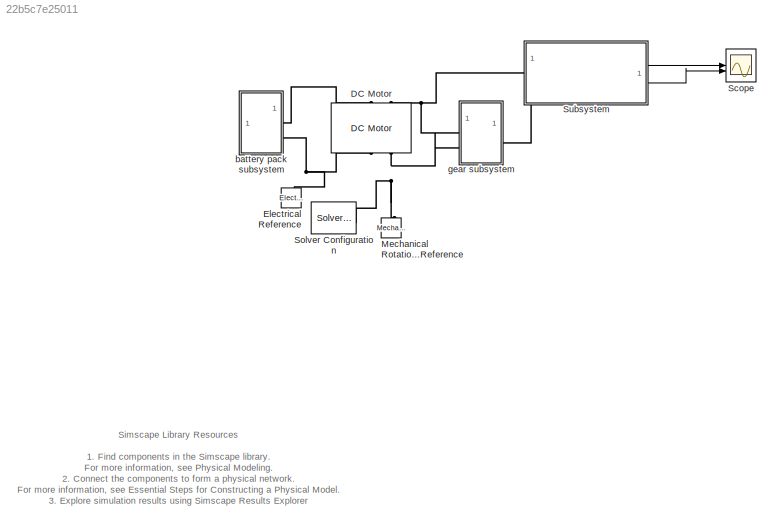
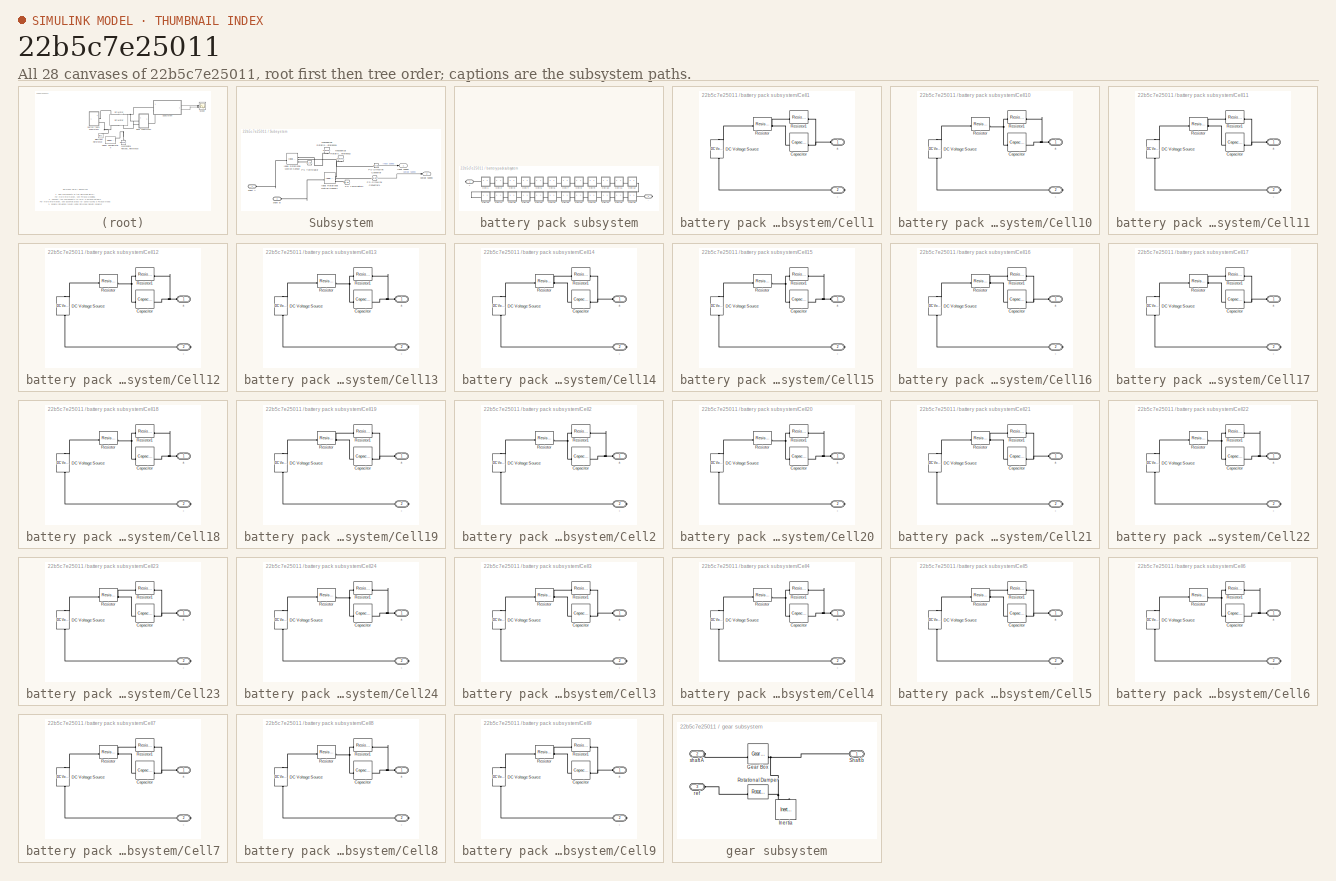
[diagram: thumbnail index - all 28 canvases of the model, root first then tree order]
MODEL slx_22b5c7e25011
KIND model
CONFIG AbsTol = 1e-3
CONFIG EnableMultiTasking = off
CONFIG FixedStep = auto
CONFIG MaxStep = auto
CONFIG MinStep = auto
CONFIG RelTol = 1e-3
CONFIG SampleTimeConstraint = Unconstrained
CONFIG SolverName = ode23t
CONFIG StartTime = 0.0
CONFIG StopTime = 10.0
BLOCK [Reference] DC Motor  REF=ee_lib/Electromechanical/Brushed Motors/DC Motor
  NameLocation = right
  SourceBlock = ee_lib/Electromechanical/Brushed Motors/DC Motor
  SourceType = DC Motor
BLOCK [Reference] Electrical Reference  REF=fl_lib/Electrical/Electrical Elements/Electrical Reference
  NameLocation = right
  SourceBlock = fl_lib/Electrical/Electrical Elements/Electrical Reference
  SourceType = Electrical Reference
BLOCK [Reference] Mechanical Rotational Reference  REF=fl_lib/Mechanical/Rotational Elements/Mechanical
Rotational Reference
  NameLocation = right
  SourceBlock = fl_lib/Mechanical/Rotational Elements/Mechanical\nRotational Reference
  SourceType = Mechanical\nRotational Reference
BLOCK [Scope] Scope
  Floating = off
  NumInputPorts = 2
  ScopeSpecificationString = Simulink.scopes.TimeScopeBlockCfg('CurrentConfiguration', extmgr.ConfigurationSet(extmgr.Configuration('Core','General UI',true),extmgr.Configuration('Core','Source UI',true),extmgr.Configuration('Sources','WiredSimulink',true),extmgr.Configuration('Visuals','Time Domain',true,'SerializedDisplays',{struct('MinYLimReal','24.30544','MaxYLimReal','59.02749','YLabelReal','','MinYLimMag','24.30544','Ma...<+1421ch>
BLOCK [Reference] Solver Configuration  REF=nesl_utility/Solver
Configuration
  SourceBlock = nesl_utility/Solver\nConfiguration
  SourceType = Solver\nConfiguration
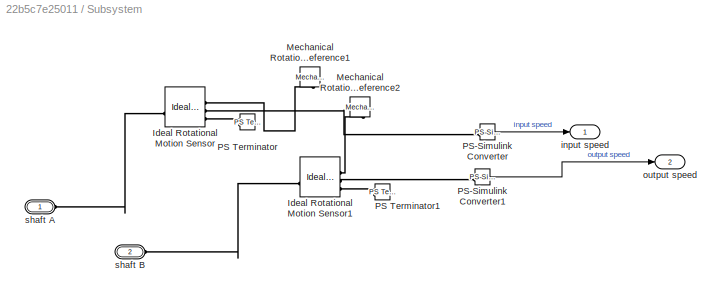
BLOCK [SubSystem] Subsystem
BLOCK [Reference] Subsystem/Ideal Rotational Motion Sensor  REF=fl_lib/Mechanical/Mechanical Sensors/Ideal Rotational
Motion Sensor
  SourceBlock = fl_lib/Mechanical/Mechanical Sensors/Ideal Rotational\nMotion Sensor
  SourceType = Ideal Rotational\nMotion Sensor
BLOCK [Reference] Subsystem/Ideal Rotational Motion Sensor1  REF=fl_lib/Mechanical/Mechanical Sensors/Ideal Rotational
Motion Sensor
  SourceBlock = fl_lib/Mechanical/Mechanical Sensors/Ideal Rotational\nMotion Sensor
  SourceType = Ideal Rotational\nMotion Sensor
BLOCK [Reference] Subsystem/Mechanical Rotational Reference1  REF=fl_lib/Mechanical/Rotational Elements/Mechanical
Rotational Reference
  NameLocation = left
  SourceBlock = fl_lib/Mechanical/Rotational Elements/Mechanical\nRotational Reference
  SourceType = Mechanical\nRotational Reference
BLOCK [Reference] Subsystem/Mechanical Rotational Reference2  REF=fl_lib/Mechanical/Rotational Elements/Mechanical
Rotational Reference
  NameLocation = left
  SourceBlock = fl_lib/Mechanical/Rotational Elements/Mechanical\nRotational Reference
  SourceType = Mechanical\nRotational Reference
BLOCK [Reference] Subsystem/PS Terminator  REF=fl_lib/Physical Signals/Sinks/PS Terminator
  SourceBlock = fl_lib/Physical Signals/Sinks/PS Terminator
  SourceType = PS Terminator
BLOCK [Reference] Subsystem/PS Terminator1  REF=fl_lib/Physical Signals/Sinks/PS Terminator
  SourceBlock = fl_lib/Physical Signals/Sinks/PS Terminator
  SourceType = PS Terminator
BLOCK [Reference] Subsystem/PS-Simulink Converter  REF=nesl_utility/PS-Simulink
Converter
  SourceBlock = nesl_utility/PS-Simulink\nConverter
  SourceType = PS-Simulink\nConverter
BLOCK [Reference] Subsystem/PS-Simulink Converter1  REF=nesl_utility/PS-Simulink
Converter
  SourceBlock = nesl_utility/PS-Simulink\nConverter
  SourceType = PS-Simulink\nConverter
BLOCK [Outport] Subsystem/input speed
BLOCK [Outport] Subsystem/output speed
  Port = 2
BLOCK [PMIOPort] Subsystem/shaft A
  Side = Left
BLOCK [PMIOPort] Subsystem/shaft B
  Port = 2
  Side = Left
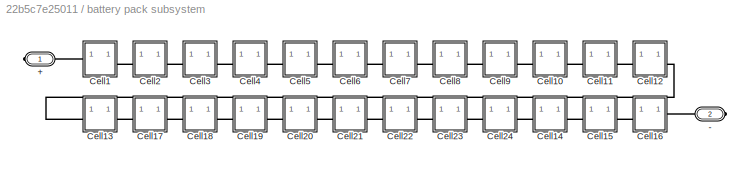
BLOCK [SubSystem] battery pack subsystem
BLOCK [PMIOPort] battery pack subsystem/+
  Side = Right
BLOCK [PMIOPort] battery pack subsystem/-
  Port = 2
  Side = Right
BLOCK [SubSystem] battery pack subsystem/Cell1
BLOCK [PMIOPort] battery pack subsystem/Cell1/+
  Side = Left
BLOCK [PMIOPort] battery pack subsystem/Cell1/-
  Port = 2
  Side = Right
BLOCK [Reference] battery pack subsystem/Cell1/Capacitor  REF=fl_lib/Electrical/Electrical Elements/Capacitor
  SourceBlock = fl_lib/Electrical/Electrical Elements/Capacitor
  SourceType = Capacitor
BLOCK [Reference] battery pack subsystem/Cell1/DC Voltage Source  REF=fl_lib/Electrical/Electrical Sources/DC Voltage Source
  NameLocation = right
  SourceBlock = fl_lib/Electrical/Electrical Sources/DC Voltage Source
  SourceType = DC Voltage Source
BLOCK [Reference] battery pack subsystem/Cell1/Resistor  REF=fl_lib/Electrical/Electrical Elements/Resistor
  AttributesFormatString = %<R> [%<R_unit>]
  SourceBlock = fl_lib/Electrical/Electrical Elements/Resistor
  SourceType = Resistor
BLOCK [Reference] battery pack subsystem/Cell1/Resistor1  REF=fl_lib/Electrical/Electrical Elements/Resistor
  AttributesFormatString = %<R> [%<R_unit>]
  SourceBlock = fl_lib/Electrical/Electrical Elements/Resistor
  SourceType = Resistor
BLOCK [SubSystem] battery pack subsystem/Cell10
BLOCK [PMIOPort] battery pack subsystem/Cell10/+
  Side = Left
BLOCK [PMIOPort] battery pack subsystem/Cell10/-
  Port = 2
  Side = Right
BLOCK [Reference] battery pack subsystem/Cell10/Capacitor  REF=fl_lib/Electrical/Electrical Elements/Capacitor
  SourceBlock = fl_lib/Electrical/Electrical Elements/Capacitor
  SourceType = Capacitor
BLOCK [Reference] battery pack subsystem/Cell10/DC Voltage Source  REF=fl_lib/Electrical/Electrical Sources/DC Voltage Source
  NameLocation = right
  SourceBlock = fl_lib/Electrical/Electrical Sources/DC Voltage Source
  SourceType = DC Voltage Source
BLOCK [Reference] battery pack subsystem/Cell10/Resistor  REF=fl_lib/Electrical/Electrical Elements/Resistor
  AttributesFormatString = %<R> [%<R_unit>]
  SourceBlock = fl_lib/Electrical/Electrical Elements/Resistor
  SourceType = Resistor
BLOCK [Reference] battery pack subsystem/Cell10/Resistor1  REF=fl_lib/Electrical/Electrical Elements/Resistor
  AttributesFormatString = %<R> [%<R_unit>]
  SourceBlock = fl_lib/Electrical/Electrical Elements/Resistor
  SourceType = Resistor
BLOCK [SubSystem] battery pack subsystem/Cell11
BLOCK [PMIOPort] battery pack subsystem/Cell11/+
  Side = Left
BLOCK [PMIOPort] battery pack subsystem/Cell11/-
  Port = 2
  Side = Right
BLOCK [Reference] battery pack subsystem/Cell11/Capacitor  REF=fl_lib/Electrical/Electrical Elements/Capacitor
  SourceBlock = fl_lib/Electrical/Electrical Elements/Capacitor
  SourceType = Capacitor
BLOCK [Reference] battery pack subsystem/Cell11/DC Voltage Source  REF=fl_lib/Electrical/Electrical Sources/DC Voltage Source
  NameLocation = right
  SourceBlock = fl_lib/Electrical/Electrical Sources/DC Voltage Source
  SourceType = DC Voltage Source
BLOCK [Reference] battery pack subsystem/Cell11/Resistor  REF=fl_lib/Electrical/Electrical Elements/Resistor
  AttributesFormatString = %<R> [%<R_unit>]
  SourceBlock = fl_lib/Electrical/Electrical Elements/Resistor
  SourceType = Resistor
BLOCK [Reference] battery pack subsystem/Cell11/Resistor1  REF=fl_lib/Electrical/Electrical Elements/Resistor
  AttributesFormatString = %<R> [%<R_unit>]
  SourceBlock = fl_lib/Electrical/Electrical Elements/Resistor
  SourceType = Resistor
BLOCK [SubSystem] battery pack subsystem/Cell12
BLOCK [PMIOPort] battery pack subsystem/Cell12/+
  Side = Left
BLOCK [PMIOPort] battery pack subsystem/Cell12/-
  Port = 2
  Side = Right
BLOCK [Reference] battery pack subsystem/Cell12/Capacitor  REF=fl_lib/Electrical/Electrical Elements/Capacitor
  SourceBlock = fl_lib/Electrical/Electrical Elements/Capacitor
  SourceType = Capacitor
BLOCK [Reference] battery pack subsystem/Cell12/DC Voltage Source  REF=fl_lib/Electrical/Electrical Sources/DC Voltage Source
  NameLocation = right
  SourceBlock = fl_lib/Electrical/Electrical Sources/DC Voltage Source
  SourceType = DC Voltage Source
BLOCK [Reference] battery pack subsystem/Cell12/Resistor  REF=fl_lib/Electrical/Electrical Elements/Resistor
  AttributesFormatString = %<R> [%<R_unit>]
  SourceBlock = fl_lib/Electrical/Electrical Elements/Resistor
  SourceType = Resistor
BLOCK [Reference] battery pack subsystem/Cell12/Resistor1  REF=fl_lib/Electrical/Electrical Elements/Resistor
  AttributesFormatString = %<R> [%<R_unit>]
  SourceBlock = fl_lib/Electrical/Electrical Elements/Resistor
  SourceType = Resistor
BLOCK [SubSystem] battery pack subsystem/Cell13
BLOCK [PMIOPort] battery pack subsystem/Cell13/+
  Side = Left
BLOCK [PMIOPort] battery pack subsystem/Cell13/-
  Port = 2
  Side = Right
BLOCK [Reference] battery pack subsystem/Cell13/Capacitor  REF=fl_lib/Electrical/Electrical Elements/Capacitor
  SourceBlock = fl_lib/Electrical/Electrical Elements/Capacitor
  SourceType = Capacitor
BLOCK [Reference] battery pack subsystem/Cell13/DC Voltage Source  REF=fl_lib/Electrical/Electrical Sources/DC Voltage Source
  NameLocation = right
  SourceBlock = fl_lib/Electrical/Electrical Sources/DC Voltage Source
  SourceType = DC Voltage Source
BLOCK [Reference] battery pack subsystem/Cell13/Resistor  REF=fl_lib/Electrical/Electrical Elements/Resistor
  AttributesFormatString = %<R> [%<R_unit>]
  SourceBlock = fl_lib/Electrical/Electrical Elements/Resistor
  SourceType = Resistor
BLOCK [Reference] battery pack subsystem/Cell13/Resistor1  REF=fl_lib/Electrical/Electrical Elements/Resistor
  AttributesFormatString = %<R> [%<R_unit>]
  SourceBlock = fl_lib/Electrical/Electrical Elements/Resistor
  SourceType = Resistor
BLOCK [SubSystem] battery pack subsystem/Cell14
BLOCK [PMIOPort] battery pack subsystem/Cell14/+
  Side = Left
BLOCK [PMIOPort] battery pack subsystem/Cell14/-
  Port = 2
  Side = Right
BLOCK [Reference] battery pack subsystem/Cell14/Capacitor  REF=fl_lib/Electrical/Electrical Elements/Capacitor
  SourceBlock = fl_lib/Electrical/Electrical Elements/Capacitor
  SourceType = Capacitor
BLOCK [Reference] battery pack subsystem/Cell14/DC Voltage Source  REF=fl_lib/Electrical/Electrical Sources/DC Voltage Source
  NameLocation = right
  SourceBlock = fl_lib/Electrical/Electrical Sources/DC Voltage Source
  SourceType = DC Voltage Source
BLOCK [Reference] battery pack subsystem/Cell14/Resistor  REF=fl_lib/Electrical/Electrical Elements/Resistor
  AttributesFormatString = %<R> [%<R_unit>]
  SourceBlock = fl_lib/Electrical/Electrical Elements/Resistor
  SourceType = Resistor
BLOCK [Reference] battery pack subsystem/Cell14/Resistor1  REF=fl_lib/Electrical/Electrical Elements/Resistor
  AttributesFormatString = %<R> [%<R_unit>]
  SourceBlock = fl_lib/Electrical/Electrical Elements/Resistor
  SourceType = Resistor
BLOCK [SubSystem] battery pack subsystem/Cell15
BLOCK [PMIOPort] battery pack subsystem/Cell15/+
  Side = Left
BLOCK [PMIOPort] battery pack subsystem/Cell15/-
  Port = 2
  Side = Right
BLOCK [Reference] battery pack subsystem/Cell15/Capacitor  REF=fl_lib/Electrical/Electrical Elements/Capacitor
  SourceBlock = fl_lib/Electrical/Electrical Elements/Capacitor
  SourceType = Capacitor
BLOCK [Reference] battery pack subsystem/Cell15/DC Voltage Source  REF=fl_lib/Electrical/Electrical Sources/DC Voltage Source
  NameLocation = right
  SourceBlock = fl_lib/Electrical/Electrical Sources/DC Voltage Source
  SourceType = DC Voltage Source
BLOCK [Reference] battery pack subsystem/Cell15/Resistor  REF=fl_lib/Electrical/Electrical Elements/Resistor
  AttributesFormatString = %<R> [%<R_unit>]
  SourceBlock = fl_lib/Electrical/Electrical Elements/Resistor
  SourceType = Resistor
BLOCK [Reference] battery pack subsystem/Cell15/Resistor1  REF=fl_lib/Electrical/Electrical Elements/Resistor
  AttributesFormatString = %<R> [%<R_unit>]
  SourceBlock = fl_lib/Electrical/Electrical Elements/Resistor
  SourceType = Resistor
BLOCK [SubSystem] battery pack subsystem/Cell16
BLOCK [PMIOPort] battery pack subsystem/Cell16/+
  Side = Left
BLOCK [PMIOPort] battery pack subsystem/Cell16/-
  Port = 2
  Side = Right
BLOCK [Reference] battery pack subsystem/Cell16/Capacitor  REF=fl_lib/Electrical/Electrical Elements/Capacitor
  SourceBlock = fl_lib/Electrical/Electrical Elements/Capacitor
  SourceType = Capacitor
BLOCK [Reference] battery pack subsystem/Cell16/DC Voltage Source  REF=fl_lib/Electrical/Electrical Sources/DC Voltage Source
  NameLocation = right
  SourceBlock = fl_lib/Electrical/Electrical Sources/DC Voltage Source
  SourceType = DC Voltage Source
BLOCK [Reference] battery pack subsystem/Cell16/Resistor  REF=fl_lib/Electrical/Electrical Elements/Resistor
  AttributesFormatString = %<R> [%<R_unit>]
  SourceBlock = fl_lib/Electrical/Electrical Elements/Resistor
  SourceType = Resistor
BLOCK [Reference] battery pack subsystem/Cell16/Resistor1  REF=fl_lib/Electrical/Electrical Elements/Resistor
  AttributesFormatString = %<R> [%<R_unit>]
  SourceBlock = fl_lib/Electrical/Electrical Elements/Resistor
  SourceType = Resistor
BLOCK [SubSystem] battery pack subsystem/Cell17
BLOCK [PMIOPort] battery pack subsystem/Cell17/+
  Side = Left
BLOCK [PMIOPort] battery pack subsystem/Cell17/-
  Port = 2
  Side = Right
BLOCK [Reference] battery pack subsystem/Cell17/Capacitor  REF=fl_lib/Electrical/Electrical Elements/Capacitor
  SourceBlock = fl_lib/Electrical/Electrical Elements/Capacitor
  SourceType = Capacitor
BLOCK [Reference] battery pack subsystem/Cell17/DC Voltage Source  REF=fl_lib/Electrical/Electrical Sources/DC Voltage Source
  NameLocation = right
  SourceBlock = fl_lib/Electrical/Electrical Sources/DC Voltage Source
  SourceType = DC Voltage Source
BLOCK [Reference] battery pack subsystem/Cell17/Resistor  REF=fl_lib/Electrical/Electrical Elements/Resistor
  AttributesFormatString = %<R> [%<R_unit>]
  SourceBlock = fl_lib/Electrical/Electrical Elements/Resistor
  SourceType = Resistor
BLOCK [Reference] battery pack subsystem/Cell17/Resistor1  REF=fl_lib/Electrical/Electrical Elements/Resistor
  AttributesFormatString = %<R> [%<R_unit>]
  SourceBlock = fl_lib/Electrical/Electrical Elements/Resistor
  SourceType = Resistor
BLOCK [SubSystem] battery pack subsystem/Cell18
BLOCK [PMIOPort] battery pack subsystem/Cell18/+
  Side = Left
BLOCK [PMIOPort] battery pack subsystem/Cell18/-
  Port = 2
  Side = Right
BLOCK [Reference] battery pack subsystem/Cell18/Capacitor  REF=fl_lib/Electrical/Electrical Elements/Capacitor
  SourceBlock = fl_lib/Electrical/Electrical Elements/Capacitor
  SourceType = Capacitor
BLOCK [Reference] battery pack subsystem/Cell18/DC Voltage Source  REF=fl_lib/Electrical/Electrical Sources/DC Voltage Source
  NameLocation = right
  SourceBlock = fl_lib/Electrical/Electrical Sources/DC Voltage Source
  SourceType = DC Voltage Source
BLOCK [Reference] battery pack subsystem/Cell18/Resistor  REF=fl_lib/Electrical/Electrical Elements/Resistor
  AttributesFormatString = %<R> [%<R_unit>]
  SourceBlock = fl_lib/Electrical/Electrical Elements/Resistor
  SourceType = Resistor
BLOCK [Reference] battery pack subsystem/Cell18/Resistor1  REF=fl_lib/Electrical/Electrical Elements/Resistor
  AttributesFormatString = %<R> [%<R_unit>]
  SourceBlock = fl_lib/Electrical/Electrical Elements/Resistor
  SourceType = Resistor
BLOCK [SubSystem] battery pack subsystem/Cell19
BLOCK [PMIOPort] battery pack subsystem/Cell19/+
  Side = Left
BLOCK [PMIOPort] battery pack subsystem/Cell19/-
  Port = 2
  Side = Right
BLOCK [Reference] battery pack subsystem/Cell19/Capacitor  REF=fl_lib/Electrical/Electrical Elements/Capacitor
  SourceBlock = fl_lib/Electrical/Electrical Elements/Capacitor
  SourceType = Capacitor
BLOCK [Reference] battery pack subsystem/Cell19/DC Voltage Source  REF=fl_lib/Electrical/Electrical Sources/DC Voltage Source
  NameLocation = right
  SourceBlock = fl_lib/Electrical/Electrical Sources/DC Voltage Source
  SourceType = DC Voltage Source
BLOCK [Reference] battery pack subsystem/Cell19/Resistor  REF=fl_lib/Electrical/Electrical Elements/Resistor
  AttributesFormatString = %<R> [%<R_unit>]
  SourceBlock = fl_lib/Electrical/Electrical Elements/Resistor
  SourceType = Resistor
BLOCK [Reference] battery pack subsystem/Cell19/Resistor1  REF=fl_lib/Electrical/Electrical Elements/Resistor
  AttributesFormatString = %<R> [%<R_unit>]
  SourceBlock = fl_lib/Electrical/Electrical Elements/Resistor
  SourceType = Resistor
BLOCK [SubSystem] battery pack subsystem/Cell2
BLOCK [PMIOPort] battery pack subsystem/Cell2/+
  Side = Left
BLOCK [PMIOPort] battery pack subsystem/Cell2/-
  Port = 2
  Side = Right
BLOCK [Reference] battery pack subsystem/Cell2/Capacitor  REF=fl_lib/Electrical/Electrical Elements/Capacitor
  SourceBlock = fl_lib/Electrical/Electrical Elements/Capacitor
  SourceType = Capacitor
BLOCK [Reference] battery pack subsystem/Cell2/DC Voltage Source  REF=fl_lib/Electrical/Electrical Sources/DC Voltage Source
  NameLocation = right
  SourceBlock = fl_lib/Electrical/Electrical Sources/DC Voltage Source
  SourceType = DC Voltage Source
BLOCK [Reference] battery pack subsystem/Cell2/Resistor  REF=fl_lib/Electrical/Electrical Elements/Resistor
  AttributesFormatString = %<R> [%<R_unit>]
  SourceBlock = fl_lib/Electrical/Electrical Elements/Resistor
  SourceType = Resistor
BLOCK [Reference] battery pack subsystem/Cell2/Resistor1  REF=fl_lib/Electrical/Electrical Elements/Resistor
  AttributesFormatString = %<R> [%<R_unit>]
  SourceBlock = fl_lib/Electrical/Electrical Elements/Resistor
  SourceType = Resistor
BLOCK [SubSystem] battery pack subsystem/Cell20
BLOCK [PMIOPort] battery pack subsystem/Cell20/+
  Side = Left
BLOCK [PMIOPort] battery pack subsystem/Cell20/-
  Port = 2
  Side = Right
BLOCK [Reference] battery pack subsystem/Cell20/Capacitor  REF=fl_lib/Electrical/Electrical Elements/Capacitor
  SourceBlock = fl_lib/Electrical/Electrical Elements/Capacitor
  SourceType = Capacitor
BLOCK [Reference] battery pack subsystem/Cell20/DC Voltage Source  REF=fl_lib/Electrical/Electrical Sources/DC Voltage Source
  NameLocation = right
  SourceBlock = fl_lib/Electrical/Electrical Sources/DC Voltage Source
  SourceType = DC Voltage Source
BLOCK [Reference] battery pack subsystem/Cell20/Resistor  REF=fl_lib/Electrical/Electrical Elements/Resistor
  AttributesFormatString = %<R> [%<R_unit>]
  SourceBlock = fl_lib/Electrical/Electrical Elements/Resistor
  SourceType = Resistor
BLOCK [Reference] battery pack subsystem/Cell20/Resistor1  REF=fl_lib/Electrical/Electrical Elements/Resistor
  AttributesFormatString = %<R> [%<R_unit>]
  SourceBlock = fl_lib/Electrical/Electrical Elements/Resistor
  SourceType = Resistor
BLOCK [SubSystem] battery pack subsystem/Cell21
BLOCK [PMIOPort] battery pack subsystem/Cell21/+
  Side = Left
BLOCK [PMIOPort] battery pack subsystem/Cell21/-
  Port = 2
  Side = Right
BLOCK [Reference] battery pack subsystem/Cell21/Capacitor  REF=fl_lib/Electrical/Electrical Elements/Capacitor
  SourceBlock = fl_lib/Electrical/Electrical Elements/Capacitor
  SourceType = Capacitor
BLOCK [Reference] battery pack subsystem/Cell21/DC Voltage Source  REF=fl_lib/Electrical/Electrical Sources/DC Voltage Source
  NameLocation = right
  SourceBlock = fl_lib/Electrical/Electrical Sources/DC Voltage Source
  SourceType = DC Voltage Source
BLOCK [Reference] battery pack subsystem/Cell21/Resistor  REF=fl_lib/Electrical/Electrical Elements/Resistor
  AttributesFormatString = %<R> [%<R_unit>]
  SourceBlock = fl_lib/Electrical/Electrical Elements/Resistor
  SourceType = Resistor
BLOCK [Reference] battery pack subsystem/Cell21/Resistor1  REF=fl_lib/Electrical/Electrical Elements/Resistor
  AttributesFormatString = %<R> [%<R_unit>]
  SourceBlock = fl_lib/Electrical/Electrical Elements/Resistor
  SourceType = Resistor
BLOCK [SubSystem] battery pack subsystem/Cell22
BLOCK [PMIOPort] battery pack subsystem/Cell22/+
  Side = Left
BLOCK [PMIOPort] battery pack subsystem/Cell22/-
  Port = 2
  Side = Right
BLOCK [Reference] battery pack subsystem/Cell22/Capacitor  REF=fl_lib/Electrical/Electrical Elements/Capacitor
  SourceBlock = fl_lib/Electrical/Electrical Elements/Capacitor
  SourceType = Capacitor
BLOCK [Reference] battery pack subsystem/Cell22/DC Voltage Source  REF=fl_lib/Electrical/Electrical Sources/DC Voltage Source
  NameLocation = right
  SourceBlock = fl_lib/Electrical/Electrical Sources/DC Voltage Source
  SourceType = DC Voltage Source
BLOCK [Reference] battery pack subsystem/Cell22/Resistor  REF=fl_lib/Electrical/Electrical Elements/Resistor
  AttributesFormatString = %<R> [%<R_unit>]
  SourceBlock = fl_lib/Electrical/Electrical Elements/Resistor
  SourceType = Resistor
BLOCK [Reference] battery pack subsystem/Cell22/Resistor1  REF=fl_lib/Electrical/Electrical Elements/Resistor
  AttributesFormatString = %<R> [%<R_unit>]
  SourceBlock = fl_lib/Electrical/Electrical Elements/Resistor
  SourceType = Resistor
BLOCK [SubSystem] battery pack subsystem/Cell23
BLOCK [PMIOPort] battery pack subsystem/Cell23/+
  Side = Left
BLOCK [PMIOPort] battery pack subsystem/Cell23/-
  Port = 2
  Side = Right
BLOCK [Reference] battery pack subsystem/Cell23/Capacitor  REF=fl_lib/Electrical/Electrical Elements/Capacitor
  SourceBlock = fl_lib/Electrical/Electrical Elements/Capacitor
  SourceType = Capacitor
BLOCK [Reference] battery pack subsystem/Cell23/DC Voltage Source  REF=fl_lib/Electrical/Electrical Sources/DC Voltage Source
  NameLocation = right
  SourceBlock = fl_lib/Electrical/Electrical Sources/DC Voltage Source
  SourceType = DC Voltage Source
BLOCK [Reference] battery pack subsystem/Cell23/Resistor  REF=fl_lib/Electrical/Electrical Elements/Resistor
  AttributesFormatString = %<R> [%<R_unit>]
  SourceBlock = fl_lib/Electrical/Electrical Elements/Resistor
  SourceType = Resistor
BLOCK [Reference] battery pack subsystem/Cell23/Resistor1  REF=fl_lib/Electrical/Electrical Elements/Resistor
  AttributesFormatString = %<R> [%<R_unit>]
  SourceBlock = fl_lib/Electrical/Electrical Elements/Resistor
  SourceType = Resistor
BLOCK [SubSystem] battery pack subsystem/Cell24
BLOCK [PMIOPort] battery pack subsystem/Cell24/+
  Side = Left
BLOCK [PMIOPort] battery pack subsystem/Cell24/-
  Port = 2
  Side = Right
BLOCK [Reference] battery pack subsystem/Cell24/Capacitor  REF=fl_lib/Electrical/Electrical Elements/Capacitor
  SourceBlock = fl_lib/Electrical/Electrical Elements/Capacitor
  SourceType = Capacitor
BLOCK [Reference] battery pack subsystem/Cell24/DC Voltage Source  REF=fl_lib/Electrical/Electrical Sources/DC Voltage Source
  NameLocation = right
  SourceBlock = fl_lib/Electrical/Electrical Sources/DC Voltage Source
  SourceType = DC Voltage Source
BLOCK [Reference] battery pack subsystem/Cell24/Resistor  REF=fl_lib/Electrical/Electrical Elements/Resistor
  AttributesFormatString = %<R> [%<R_unit>]
  SourceBlock = fl_lib/Electrical/Electrical Elements/Resistor
  SourceType = Resistor
BLOCK [Reference] battery pack subsystem/Cell24/Resistor1  REF=fl_lib/Electrical/Electrical Elements/Resistor
  AttributesFormatString = %<R> [%<R_unit>]
  SourceBlock = fl_lib/Electrical/Electrical Elements/Resistor
  SourceType = Resistor
BLOCK [SubSystem] battery pack subsystem/Cell3
BLOCK [PMIOPort] battery pack subsystem/Cell3/+
  Side = Left
BLOCK [PMIOPort] battery pack subsystem/Cell3/-
  Port = 2
  Side = Right
BLOCK [Reference] battery pack subsystem/Cell3/Capacitor  REF=fl_lib/Electrical/Electrical Elements/Capacitor
  SourceBlock = fl_lib/Electrical/Electrical Elements/Capacitor
  SourceType = Capacitor
BLOCK [Reference] battery pack subsystem/Cell3/DC Voltage Source  REF=fl_lib/Electrical/Electrical Sources/DC Voltage Source
  NameLocation = right
  SourceBlock = fl_lib/Electrical/Electrical Sources/DC Voltage Source
  SourceType = DC Voltage Source
BLOCK [Reference] battery pack subsystem/Cell3/Resistor  REF=fl_lib/Electrical/Electrical Elements/Resistor
  AttributesFormatString = %<R> [%<R_unit>]
  SourceBlock = fl_lib/Electrical/Electrical Elements/Resistor
  SourceType = Resistor
BLOCK [Reference] battery pack subsystem/Cell3/Resistor1  REF=fl_lib/Electrical/Electrical Elements/Resistor
  AttributesFormatString = %<R> [%<R_unit>]
  SourceBlock = fl_lib/Electrical/Electrical Elements/Resistor
  SourceType = Resistor
BLOCK [SubSystem] battery pack subsystem/Cell4
BLOCK [PMIOPort] battery pack subsystem/Cell4/+
  Side = Left
BLOCK [PMIOPort] battery pack subsystem/Cell4/-
  Port = 2
  Side = Right
BLOCK [Reference] battery pack subsystem/Cell4/Capacitor  REF=fl_lib/Electrical/Electrical Elements/Capacitor
  SourceBlock = fl_lib/Electrical/Electrical Elements/Capacitor
  SourceType = Capacitor
BLOCK [Reference] battery pack subsystem/Cell4/DC Voltage Source  REF=fl_lib/Electrical/Electrical Sources/DC Voltage Source
  NameLocation = right
  SourceBlock = fl_lib/Electrical/Electrical Sources/DC Voltage Source
  SourceType = DC Voltage Source
BLOCK [Reference] battery pack subsystem/Cell4/Resistor  REF=fl_lib/Electrical/Electrical Elements/Resistor
  AttributesFormatString = %<R> [%<R_unit>]
  SourceBlock = fl_lib/Electrical/Electrical Elements/Resistor
  SourceType = Resistor
BLOCK [Reference] battery pack subsystem/Cell4/Resistor1  REF=fl_lib/Electrical/Electrical Elements/Resistor
  AttributesFormatString = %<R> [%<R_unit>]
  SourceBlock = fl_lib/Electrical/Electrical Elements/Resistor
  SourceType = Resistor
BLOCK [SubSystem] battery pack subsystem/Cell5
BLOCK [PMIOPort] battery pack subsystem/Cell5/+
  Side = Left
BLOCK [PMIOPort] battery pack subsystem/Cell5/-
  Port = 2
  Side = Right
BLOCK [Reference] battery pack subsystem/Cell5/Capacitor  REF=fl_lib/Electrical/Electrical Elements/Capacitor
  SourceBlock = fl_lib/Electrical/Electrical Elements/Capacitor
  SourceType = Capacitor
BLOCK [Reference] battery pack subsystem/Cell5/DC Voltage Source  REF=fl_lib/Electrical/Electrical Sources/DC Voltage Source
  NameLocation = right
  SourceBlock = fl_lib/Electrical/Electrical Sources/DC Voltage Source
  SourceType = DC Voltage Source
BLOCK [Reference] battery pack subsystem/Cell5/Resistor  REF=fl_lib/Electrical/Electrical Elements/Resistor
  AttributesFormatString = %<R> [%<R_unit>]
  SourceBlock = fl_lib/Electrical/Electrical Elements/Resistor
  SourceType = Resistor
BLOCK [Reference] battery pack subsystem/Cell5/Resistor1  REF=fl_lib/Electrical/Electrical Elements/Resistor
  AttributesFormatString = %<R> [%<R_unit>]
  SourceBlock = fl_lib/Electrical/Electrical Elements/Resistor
  SourceType = Resistor
BLOCK [SubSystem] battery pack subsystem/Cell6
BLOCK [PMIOPort] battery pack subsystem/Cell6/+
  Side = Left
BLOCK [PMIOPort] battery pack subsystem/Cell6/-
  Port = 2
  Side = Right
BLOCK [Reference] battery pack subsystem/Cell6/Capacitor  REF=fl_lib/Electrical/Electrical Elements/Capacitor
  SourceBlock = fl_lib/Electrical/Electrical Elements/Capacitor
  SourceType = Capacitor
BLOCK [Reference] battery pack subsystem/Cell6/DC Voltage Source  REF=fl_lib/Electrical/Electrical Sources/DC Voltage Source
  NameLocation = right
  SourceBlock = fl_lib/Electrical/Electrical Sources/DC Voltage Source
  SourceType = DC Voltage Source
BLOCK [Reference] battery pack subsystem/Cell6/Resistor  REF=fl_lib/Electrical/Electrical Elements/Resistor
  AttributesFormatString = %<R> [%<R_unit>]
  SourceBlock = fl_lib/Electrical/Electrical Elements/Resistor
  SourceType = Resistor
BLOCK [Reference] battery pack subsystem/Cell6/Resistor1  REF=fl_lib/Electrical/Electrical Elements/Resistor
  AttributesFormatString = %<R> [%<R_unit>]
  SourceBlock = fl_lib/Electrical/Electrical Elements/Resistor
  SourceType = Resistor
BLOCK [SubSystem] battery pack subsystem/Cell7
BLOCK [PMIOPort] battery pack subsystem/Cell7/+
  Side = Left
BLOCK [PMIOPort] battery pack subsystem/Cell7/-
  Port = 2
  Side = Right
BLOCK [Reference] battery pack subsystem/Cell7/Capacitor  REF=fl_lib/Electrical/Electrical Elements/Capacitor
  SourceBlock = fl_lib/Electrical/Electrical Elements/Capacitor
  SourceType = Capacitor
BLOCK [Reference] battery pack subsystem/Cell7/DC Voltage Source  REF=fl_lib/Electrical/Electrical Sources/DC Voltage Source
  NameLocation = right
  SourceBlock = fl_lib/Electrical/Electrical Sources/DC Voltage Source
  SourceType = DC Voltage Source
BLOCK [Reference] battery pack subsystem/Cell7/Resistor  REF=fl_lib/Electrical/Electrical Elements/Resistor
  AttributesFormatString = %<R> [%<R_unit>]
  SourceBlock = fl_lib/Electrical/Electrical Elements/Resistor
  SourceType = Resistor
BLOCK [Reference] battery pack subsystem/Cell7/Resistor1  REF=fl_lib/Electrical/Electrical Elements/Resistor
  AttributesFormatString = %<R> [%<R_unit>]
  SourceBlock = fl_lib/Electrical/Electrical Elements/Resistor
  SourceType = Resistor
BLOCK [SubSystem] battery pack subsystem/Cell8
BLOCK [PMIOPort] battery pack subsystem/Cell8/+
  Side = Left
BLOCK [PMIOPort] battery pack subsystem/Cell8/-
  Port = 2
  Side = Right
BLOCK [Reference] battery pack subsystem/Cell8/Capacitor  REF=fl_lib/Electrical/Electrical Elements/Capacitor
  SourceBlock = fl_lib/Electrical/Electrical Elements/Capacitor
  SourceType = Capacitor
BLOCK [Reference] battery pack subsystem/Cell8/DC Voltage Source  REF=fl_lib/Electrical/Electrical Sources/DC Voltage Source
  NameLocation = right
  SourceBlock = fl_lib/Electrical/Electrical Sources/DC Voltage Source
  SourceType = DC Voltage Source
BLOCK [Reference] battery pack subsystem/Cell8/Resistor  REF=fl_lib/Electrical/Electrical Elements/Resistor
  AttributesFormatString = %<R> [%<R_unit>]
  SourceBlock = fl_lib/Electrical/Electrical Elements/Resistor
  SourceType = Resistor
BLOCK [Reference] battery pack subsystem/Cell8/Resistor1  REF=fl_lib/Electrical/Electrical Elements/Resistor
  AttributesFormatString = %<R> [%<R_unit>]
  SourceBlock = fl_lib/Electrical/Electrical Elements/Resistor
  SourceType = Resistor
BLOCK [SubSystem] battery pack subsystem/Cell9
BLOCK [PMIOPort] battery pack subsystem/Cell9/+
  Side = Left
BLOCK [PMIOPort] battery pack subsystem/Cell9/-
  Port = 2
  Side = Right
BLOCK [Reference] battery pack subsystem/Cell9/Capacitor  REF=fl_lib/Electrical/Electrical Elements/Capacitor
  SourceBlock = fl_lib/Electrical/Electrical Elements/Capacitor
  SourceType = Capacitor
BLOCK [Reference] battery pack subsystem/Cell9/DC Voltage Source  REF=fl_lib/Electrical/Electrical Sources/DC Voltage Source
  NameLocation = right
  SourceBlock = fl_lib/Electrical/Electrical Sources/DC Voltage Source
  SourceType = DC Voltage Source
BLOCK [Reference] battery pack subsystem/Cell9/Resistor  REF=fl_lib/Electrical/Electrical Elements/Resistor
  AttributesFormatString = %<R> [%<R_unit>]
  SourceBlock = fl_lib/Electrical/Electrical Elements/Resistor
  SourceType = Resistor
BLOCK [Reference] battery pack subsystem/Cell9/Resistor1  REF=fl_lib/Electrical/Electrical Elements/Resistor
  AttributesFormatString = %<R> [%<R_unit>]
  SourceBlock = fl_lib/Electrical/Electrical Elements/Resistor
  SourceType = Resistor
BLOCK [SubSystem] gear subsystem
BLOCK [Reference] gear subsystem/Gear Box  REF=fl_lib/Mechanical/Mechanisms/Gear Box
  SourceBlock = fl_lib/Mechanical/Mechanisms/Gear Box
  SourceType = Gear Box
BLOCK [Reference] gear subsystem/Inertia  REF=fl_lib/Mechanical/Rotational Elements/Inertia
  NameLocation = right
  SourceBlock = fl_lib/Mechanical/Rotational Elements/Inertia
  SourceType = Inertia
BLOCK [Reference] gear subsystem/Rotational Damper  REF=fl_lib/Mechanical/Rotational Elements/Rotational Damper
  SourceBlock = fl_lib/Mechanical/Rotational Elements/Rotational Damper
  SourceType = Rotational Damper
BLOCK [PMIOPort] gear subsystem/Shaft b
  Side = Right
BLOCK [PMIOPort] gear subsystem/ref
  Port = 3
  Side = Left
BLOCK [PMIOPort] gear subsystem/shaft A
  Port = 2
  Side = Left
ANNOTATION (root): 1. Find components in the Simscape library . For more information, see Physical Modeling . 2. Connect the components to form a physical network. For more information, see Essential Steps for Constructing a Physical Model . 3. Explore simulation results using Simscape Results Explorer
ANNOTATION (root): Simscape Library Resources
LINE Subsystem/PS-Simulink Converter1:1 -> Subsystem/output speed:1
LINE Subsystem/PS-Simulink Converter:1 -> Subsystem/input speed:1
LINE Subsystem:1 -> Scope:1
LINE Subsystem:2 -> Scope:2
PLINE DC Motor:LConn1 -- battery pack subsystem:RConn1
PNET net1: DC Motor:LConn2 -- Subsystem:LConn1 -- gear subsystem:LConn1
PNET net2: DC Motor:RConn1 -- Electrical Reference:LConn1 -- battery pack subsystem:RConn2
PNET net3: DC Motor:RConn2 -- Mechanical Rotational Reference:LConn1 -- Solver Configuration:RConn1 -- gear subsystem:LConn2
PLINE Subsystem/Ideal Rotational Motion Sensor1:LConn1 -- Subsystem/shaft B:RConn1
PLINE Subsystem/Ideal Rotational Motion Sensor1:RConn1 -- Subsystem/Mechanical Rotational Reference2:LConn1
PLINE Subsystem/Ideal Rotational Motion Sensor1:RConn2 -- Subsystem/PS-Simulink Converter1:LConn1
PLINE Subsystem/Ideal Rotational Motion Sensor1:RConn3 -- Subsystem/PS Terminator1:LConn1
PLINE Subsystem/Ideal Rotational Motion Sensor:LConn1 -- Subsystem/shaft A:RConn1
PLINE Subsystem/Ideal Rotational Motion Sensor:RConn1 -- Subsystem/Mechanical Rotational Reference1:LConn1
PLINE Subsystem/Ideal Rotational Motion Sensor:RConn2 -- Subsystem/PS-Simulink Converter:LConn1
PLINE Subsystem/Ideal Rotational Motion Sensor:RConn3 -- Subsystem/PS Terminator:LConn1
PLINE Subsystem:LConn2 -- gear subsystem:RConn1
PLINE battery pack subsystem/+:RConn1 -- battery pack subsystem/Cell1:LConn1
PLINE battery pack subsystem/-:RConn1 -- battery pack subsystem/Cell16:RConn1
PNET net4: battery pack subsystem/Cell1/+:RConn1 -- battery pack subsystem/Cell1/Capacitor:RConn1 -- battery pack subsystem/Cell1/Resistor1:RConn1
PLINE battery pack subsystem/Cell1/-:RConn1 -- battery pack subsystem/Cell1/DC Voltage Source:RConn1
PNET net5: battery pack subsystem/Cell1/Capacitor:LConn1 -- battery pack subsystem/Cell1/Resistor1:LConn1 -- battery pack subsystem/Cell1/Resistor:RConn1
PLINE battery pack subsystem/Cell1/DC Voltage Source:LConn1 -- battery pack subsystem/Cell1/Resistor:LConn1
PNET net6: battery pack subsystem/Cell10/+:RConn1 -- battery pack subsystem/Cell10/Capacitor:RConn1 -- battery pack subsystem/Cell10/Resistor1:RConn1
PLINE battery pack subsystem/Cell10/-:RConn1 -- battery pack subsystem/Cell10/DC Voltage Source:RConn1
PNET net7: battery pack subsystem/Cell10/Capacitor:LConn1 -- battery pack subsystem/Cell10/Resistor1:LConn1 -- battery pack subsystem/Cell10/Resistor:RConn1
PLINE battery pack subsystem/Cell10/DC Voltage Source:LConn1 -- battery pack subsystem/Cell10/Resistor:LConn1
PLINE battery pack subsystem/Cell10:LConn1 -- battery pack subsystem/Cell9:RConn1
PLINE battery pack subsystem/Cell10:RConn1 -- battery pack subsystem/Cell11:LConn1
PNET net8: battery pack subsystem/Cell11/+:RConn1 -- battery pack subsystem/Cell11/Capacitor:RConn1 -- battery pack subsystem/Cell11/Resistor1:RConn1
PLINE battery pack subsystem/Cell11/-:RConn1 -- battery pack subsystem/Cell11/DC Voltage Source:RConn1
PNET net9: battery pack subsystem/Cell11/Capacitor:LConn1 -- battery pack subsystem/Cell11/Resistor1:LConn1 -- battery pack subsystem/Cell11/Resistor:RConn1
PLINE battery pack subsystem/Cell11/DC Voltage Source:LConn1 -- battery pack subsystem/Cell11/Resistor:LConn1
PLINE battery pack subsystem/Cell11:RConn1 -- battery pack subsystem/Cell12:LConn1
PNET net10: battery pack subsystem/Cell12/+:RConn1 -- battery pack subsystem/Cell12/Capacitor:RConn1 -- battery pack subsystem/Cell12/Resistor1:RConn1
PLINE battery pack subsystem/Cell12/-:RConn1 -- battery pack subsystem/Cell12/DC Voltage Source:RConn1
PNET net11: battery pack subsystem/Cell12/Capacitor:LConn1 -- battery pack subsystem/Cell12/Resistor1:LConn1 -- battery pack subsystem/Cell12/Resistor:RConn1
PLINE battery pack subsystem/Cell12/DC Voltage Source:LConn1 -- battery pack subsystem/Cell12/Resistor:LConn1
PLINE battery pack subsystem/Cell12:RConn1 -- battery pack subsystem/Cell13:LConn1
PNET net12: battery pack subsystem/Cell13/+:RConn1 -- battery pack subsystem/Cell13/Capacitor:RConn1 -- battery pack subsystem/Cell13/Resistor1:RConn1
PLINE battery pack subsystem/Cell13/-:RConn1 -- battery pack subsystem/Cell13/DC Voltage Source:RConn1
PNET net13: battery pack subsystem/Cell13/Capacitor:LConn1 -- battery pack subsystem/Cell13/Resistor1:LConn1 -- battery pack subsystem/Cell13/Resistor:RConn1
PLINE battery pack subsystem/Cell13/DC Voltage Source:LConn1 -- battery pack subsystem/Cell13/Resistor:LConn1
PLINE battery pack subsystem/Cell13:RConn1 -- battery pack subsystem/Cell17:LConn1
PNET net14: battery pack subsystem/Cell14/+:RConn1 -- battery pack subsystem/Cell14/Capacitor:RConn1 -- battery pack subsystem/Cell14/Resistor1:RConn1
PLINE battery pack subsystem/Cell14/-:RConn1 -- battery pack subsystem/Cell14/DC Voltage Source:RConn1
PNET net15: battery pack subsystem/Cell14/Capacitor:LConn1 -- battery pack subsystem/Cell14/Resistor1:LConn1 -- battery pack subsystem/Cell14/Resistor:RConn1
PLINE battery pack subsystem/Cell14/DC Voltage Source:LConn1 -- battery pack subsystem/Cell14/Resistor:LConn1
PLINE battery pack subsystem/Cell14:LConn1 -- battery pack subsystem/Cell24:RConn1
PLINE battery pack subsystem/Cell14:RConn1 -- battery pack subsystem/Cell15:LConn1
PNET net16: battery pack subsystem/Cell15/+:RConn1 -- battery pack subsystem/Cell15/Capacitor:RConn1 -- battery pack subsystem/Cell15/Resistor1:RConn1
PLINE battery pack subsystem/Cell15/-:RConn1 -- battery pack subsystem/Cell15/DC Voltage Source:RConn1
PNET net17: battery pack subsystem/Cell15/Capacitor:LConn1 -- battery pack subsystem/Cell15/Resistor1:LConn1 -- battery pack subsystem/Cell15/Resistor:RConn1
PLINE battery pack subsystem/Cell15/DC Voltage Source:LConn1 -- battery pack subsystem/Cell15/Resistor:LConn1
PLINE battery pack subsystem/Cell15:RConn1 -- battery pack subsystem/Cell16:LConn1
PNET net18: battery pack subsystem/Cell16/+:RConn1 -- battery pack subsystem/Cell16/Capacitor:RConn1 -- battery pack subsystem/Cell16/Resistor1:RConn1
PLINE battery pack subsystem/Cell16/-:RConn1 -- battery pack subsystem/Cell16/DC Voltage Source:RConn1
PNET net19: battery pack subsystem/Cell16/Capacitor:LConn1 -- battery pack subsystem/Cell16/Resistor1:LConn1 -- battery pack subsystem/Cell16/Resistor:RConn1
PLINE battery pack subsystem/Cell16/DC Voltage Source:LConn1 -- battery pack subsystem/Cell16/Resistor:LConn1
PNET net20: battery pack subsystem/Cell17/+:RConn1 -- battery pack subsystem/Cell17/Capacitor:RConn1 -- battery pack subsystem/Cell17/Resistor1:RConn1
PLINE battery pack subsystem/Cell17/-:RConn1 -- battery pack subsystem/Cell17/DC Voltage Source:RConn1
PNET net21: battery pack subsystem/Cell17/Capacitor:LConn1 -- battery pack subsystem/Cell17/Resistor1:LConn1 -- battery pack subsystem/Cell17/Resistor:RConn1
PLINE battery pack subsystem/Cell17/DC Voltage Source:LConn1 -- battery pack subsystem/Cell17/Resistor:LConn1
PLINE battery pack subsystem/Cell17:RConn1 -- battery pack subsystem/Cell18:LConn1
PNET net22: battery pack subsystem/Cell18/+:RConn1 -- battery pack subsystem/Cell18/Capacitor:RConn1 -- battery pack subsystem/Cell18/Resistor1:RConn1
PLINE battery pack subsystem/Cell18/-:RConn1 -- battery pack subsystem/Cell18/DC Voltage Source:RConn1
PNET net23: battery pack subsystem/Cell18/Capacitor:LConn1 -- battery pack subsystem/Cell18/Resistor1:LConn1 -- battery pack subsystem/Cell18/Resistor:RConn1
PLINE battery pack subsystem/Cell18/DC Voltage Source:LConn1 -- battery pack subsystem/Cell18/Resistor:LConn1
PLINE battery pack subsystem/Cell18:RConn1 -- battery pack subsystem/Cell19:LConn1
PNET net24: battery pack subsystem/Cell19/+:RConn1 -- battery pack subsystem/Cell19/Capacitor:RConn1 -- battery pack subsystem/Cell19/Resistor1:RConn1
PLINE battery pack subsystem/Cell19/-:RConn1 -- battery pack subsystem/Cell19/DC Voltage Source:RConn1
PNET net25: battery pack subsystem/Cell19/Capacitor:LConn1 -- battery pack subsystem/Cell19/Resistor1:LConn1 -- battery pack subsystem/Cell19/Resistor:RConn1
PLINE battery pack subsystem/Cell19/DC Voltage Source:LConn1 -- battery pack subsystem/Cell19/Resistor:LConn1
PLINE battery pack subsystem/Cell19:RConn1 -- battery pack subsystem/Cell20:LConn1
PLINE battery pack subsystem/Cell1:RConn1 -- battery pack subsystem/Cell2:LConn1
PNET net26: battery pack subsystem/Cell2/+:RConn1 -- battery pack subsystem/Cell2/Capacitor:RConn1 -- battery pack subsystem/Cell2/Resistor1:RConn1
PLINE battery pack subsystem/Cell2/-:RConn1 -- battery pack subsystem/Cell2/DC Voltage Source:RConn1
PNET net27: battery pack subsystem/Cell2/Capacitor:LConn1 -- battery pack subsystem/Cell2/Resistor1:LConn1 -- battery pack subsystem/Cell2/Resistor:RConn1
PLINE battery pack subsystem/Cell2/DC Voltage Source:LConn1 -- battery pack subsystem/Cell2/Resistor:LConn1
PNET net28: battery pack subsystem/Cell20/+:RConn1 -- battery pack subsystem/Cell20/Capacitor:RConn1 -- battery pack subsystem/Cell20/Resistor1:RConn1
PLINE battery pack subsystem/Cell20/-:RConn1 -- battery pack subsystem/Cell20/DC Voltage Source:RConn1
PNET net29: battery pack subsystem/Cell20/Capacitor:LConn1 -- battery pack subsystem/Cell20/Resistor1:LConn1 -- battery pack subsystem/Cell20/Resistor:RConn1
PLINE battery pack subsystem/Cell20/DC Voltage Source:LConn1 -- battery pack subsystem/Cell20/Resistor:LConn1
PLINE battery pack subsystem/Cell20:RConn1 -- battery pack subsystem/Cell21:LConn1
PNET net30: battery pack subsystem/Cell21/+:RConn1 -- battery pack subsystem/Cell21/Capacitor:RConn1 -- battery pack subsystem/Cell21/Resistor1:RConn1
PLINE battery pack subsystem/Cell21/-:RConn1 -- battery pack subsystem/Cell21/DC Voltage Source:RConn1
PNET net31: battery pack subsystem/Cell21/Capacitor:LConn1 -- battery pack subsystem/Cell21/Resistor1:LConn1 -- battery pack subsystem/Cell21/Resistor:RConn1
PLINE battery pack subsystem/Cell21/DC Voltage Source:LConn1 -- battery pack subsystem/Cell21/Resistor:LConn1
PLINE battery pack subsystem/Cell21:RConn1 -- battery pack subsystem/Cell22:LConn1
PNET net32: battery pack subsystem/Cell22/+:RConn1 -- battery pack subsystem/Cell22/Capacitor:RConn1 -- battery pack subsystem/Cell22/Resistor1:RConn1
PLINE battery pack subsystem/Cell22/-:RConn1 -- battery pack subsystem/Cell22/DC Voltage Source:RConn1
PNET net33: battery pack subsystem/Cell22/Capacitor:LConn1 -- battery pack subsystem/Cell22/Resistor1:LConn1 -- battery pack subsystem/Cell22/Resistor:RConn1
PLINE battery pack subsystem/Cell22/DC Voltage Source:LConn1 -- battery pack subsystem/Cell22/Resistor:LConn1
PLINE battery pack subsystem/Cell22:RConn1 -- battery pack subsystem/Cell23:LConn1
PNET net34: battery pack subsystem/Cell23/+:RConn1 -- battery pack subsystem/Cell23/Capacitor:RConn1 -- battery pack subsystem/Cell23/Resistor1:RConn1
PLINE battery pack subsystem/Cell23/-:RConn1 -- battery pack subsystem/Cell23/DC Voltage Source:RConn1
PNET net35: battery pack subsystem/Cell23/Capacitor:LConn1 -- battery pack subsystem/Cell23/Resistor1:LConn1 -- battery pack subsystem/Cell23/Resistor:RConn1
PLINE battery pack subsystem/Cell23/DC Voltage Source:LConn1 -- battery pack subsystem/Cell23/Resistor:LConn1
PLINE battery pack subsystem/Cell23:RConn1 -- battery pack subsystem/Cell24:LConn1
PNET net36: battery pack subsystem/Cell24/+:RConn1 -- battery pack subsystem/Cell24/Capacitor:RConn1 -- battery pack subsystem/Cell24/Resistor1:RConn1
PLINE battery pack subsystem/Cell24/-:RConn1 -- battery pack subsystem/Cell24/DC Voltage Source:RConn1
PNET net37: battery pack subsystem/Cell24/Capacitor:LConn1 -- battery pack subsystem/Cell24/Resistor1:LConn1 -- battery pack subsystem/Cell24/Resistor:RConn1
PLINE battery pack subsystem/Cell24/DC Voltage Source:LConn1 -- battery pack subsystem/Cell24/Resistor:LConn1
PLINE battery pack subsystem/Cell2:RConn1 -- battery pack subsystem/Cell3:LConn1
PNET net38: battery pack subsystem/Cell3/+:RConn1 -- battery pack subsystem/Cell3/Capacitor:RConn1 -- battery pack subsystem/Cell3/Resistor1:RConn1
PLINE battery pack subsystem/Cell3/-:RConn1 -- battery pack subsystem/Cell3/DC Voltage Source:RConn1
PNET net39: battery pack subsystem/Cell3/Capacitor:LConn1 -- battery pack subsystem/Cell3/Resistor1:LConn1 -- battery pack subsystem/Cell3/Resistor:RConn1
PLINE battery pack subsystem/Cell3/DC Voltage Source:LConn1 -- battery pack subsystem/Cell3/Resistor:LConn1
PLINE battery pack subsystem/Cell3:RConn1 -- battery pack subsystem/Cell4:LConn1
PNET net40: battery pack subsystem/Cell4/+:RConn1 -- battery pack subsystem/Cell4/Capacitor:RConn1 -- battery pack subsystem/Cell4/Resistor1:RConn1
PLINE battery pack subsystem/Cell4/-:RConn1 -- battery pack subsystem/Cell4/DC Voltage Source:RConn1
PNET net41: battery pack subsystem/Cell4/Capacitor:LConn1 -- battery pack subsystem/Cell4/Resistor1:LConn1 -- battery pack subsystem/Cell4/Resistor:RConn1
PLINE battery pack subsystem/Cell4/DC Voltage Source:LConn1 -- battery pack subsystem/Cell4/Resistor:LConn1
PLINE battery pack subsystem/Cell4:RConn1 -- battery pack subsystem/Cell5:LConn1
PNET net42: battery pack subsystem/Cell5/+:RConn1 -- battery pack subsystem/Cell5/Capacitor:RConn1 -- battery pack subsystem/Cell5/Resistor1:RConn1
PLINE battery pack subsystem/Cell5/-:RConn1 -- battery pack subsystem/Cell5/DC Voltage Source:RConn1
PNET net43: battery pack subsystem/Cell5/Capacitor:LConn1 -- battery pack subsystem/Cell5/Resistor1:LConn1 -- battery pack subsystem/Cell5/Resistor:RConn1
PLINE battery pack subsystem/Cell5/DC Voltage Source:LConn1 -- battery pack subsystem/Cell5/Resistor:LConn1
PLINE battery pack subsystem/Cell5:RConn1 -- battery pack subsystem/Cell6:LConn1
PNET net44: battery pack subsystem/Cell6/+:RConn1 -- battery pack subsystem/Cell6/Capacitor:RConn1 -- battery pack subsystem/Cell6/Resistor1:RConn1
PLINE battery pack subsystem/Cell6/-:RConn1 -- battery pack subsystem/Cell6/DC Voltage Source:RConn1
PNET net45: battery pack subsystem/Cell6/Capacitor:LConn1 -- battery pack subsystem/Cell6/Resistor1:LConn1 -- battery pack subsystem/Cell6/Resistor:RConn1
PLINE battery pack subsystem/Cell6/DC Voltage Source:LConn1 -- battery pack subsystem/Cell6/Resistor:LConn1
PLINE battery pack subsystem/Cell6:RConn1 -- battery pack subsystem/Cell7:LConn1
PNET net46: battery pack subsystem/Cell7/+:RConn1 -- battery pack subsystem/Cell7/Capacitor:RConn1 -- battery pack subsystem/Cell7/Resistor1:RConn1
PLINE battery pack subsystem/Cell7/-:RConn1 -- battery pack subsystem/Cell7/DC Voltage Source:RConn1
PNET net47: battery pack subsystem/Cell7/Capacitor:LConn1 -- battery pack subsystem/Cell7/Resistor1:LConn1 -- battery pack subsystem/Cell7/Resistor:RConn1
PLINE battery pack subsystem/Cell7/DC Voltage Source:LConn1 -- battery pack subsystem/Cell7/Resistor:LConn1
PLINE battery pack subsystem/Cell7:RConn1 -- battery pack subsystem/Cell8:LConn1
PNET net48: battery pack subsystem/Cell8/+:RConn1 -- battery pack subsystem/Cell8/Capacitor:RConn1 -- battery pack subsystem/Cell8/Resistor1:RConn1
PLINE battery pack subsystem/Cell8/-:RConn1 -- battery pack subsystem/Cell8/DC Voltage Source:RConn1
PNET net49: battery pack subsystem/Cell8/Capacitor:LConn1 -- battery pack subsystem/Cell8/Resistor1:LConn1 -- battery pack subsystem/Cell8/Resistor:RConn1
PLINE battery pack subsystem/Cell8/DC Voltage Source:LConn1 -- battery pack subsystem/Cell8/Resistor:LConn1
PLINE battery pack subsystem/Cell8:RConn1 -- battery pack subsystem/Cell9:LConn1
PNET net50: battery pack subsystem/Cell9/+:RConn1 -- battery pack subsystem/Cell9/Capacitor:RConn1 -- battery pack subsystem/Cell9/Resistor1:RConn1
PLINE battery pack subsystem/Cell9/-:RConn1 -- battery pack subsystem/Cell9/DC Voltage Source:RConn1
PNET net51: battery pack subsystem/Cell9/Capacitor:LConn1 -- battery pack subsystem/Cell9/Resistor1:LConn1 -- battery pack subsystem/Cell9/Resistor:RConn1
PLINE battery pack subsystem/Cell9/DC Voltage Source:LConn1 -- battery pack subsystem/Cell9/Resistor:LConn1
PLINE gear subsystem/Gear Box:LConn1 -- gear subsystem/shaft A:RConn1
PNET net52: gear subsystem/Gear Box:RConn1 -- gear subsystem/Inertia:LConn1 -- gear subsystem/Rotational Damper:RConn1 -- gear subsystem/Shaft b:RConn1
PLINE gear subsystem/Rotational Damper:LConn1 -- gear subsystem/ref:RConn1
note: PNET lines group multi-terminal physical nets as a canonical sorted terminal list (undirected conserving connections); 2-terminal nets keep the pairwise PLINE form
